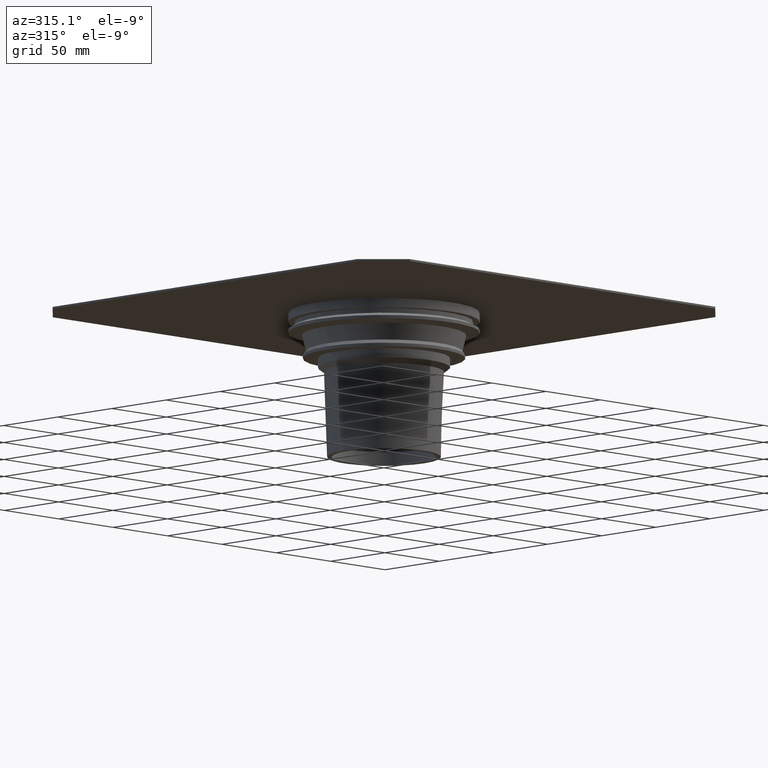
[diagram: clean part render]
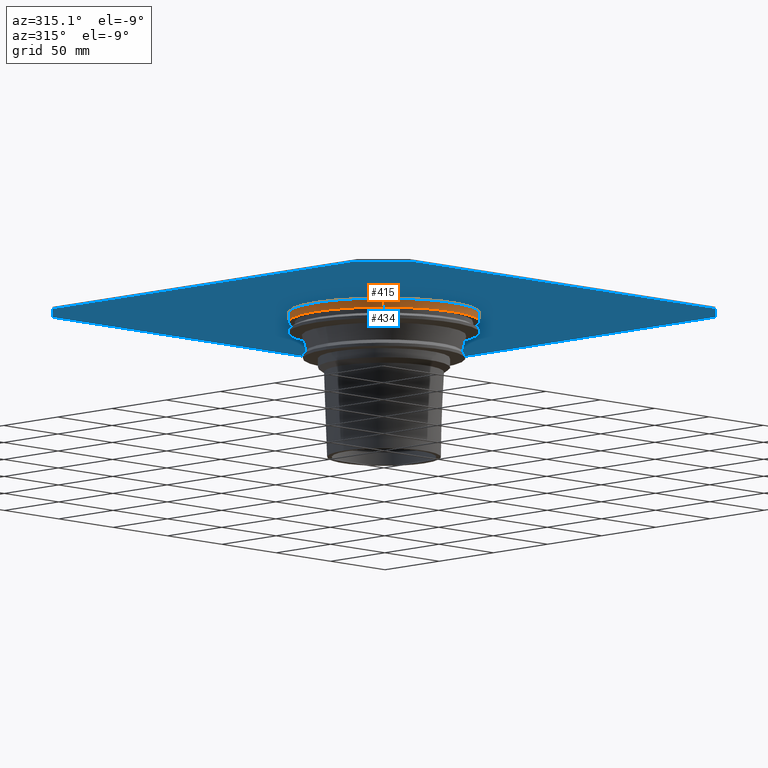
[diagram: same view with the hole feature highlighted: cylindrical wall and planar end face, labeled with their STEP entity ids]
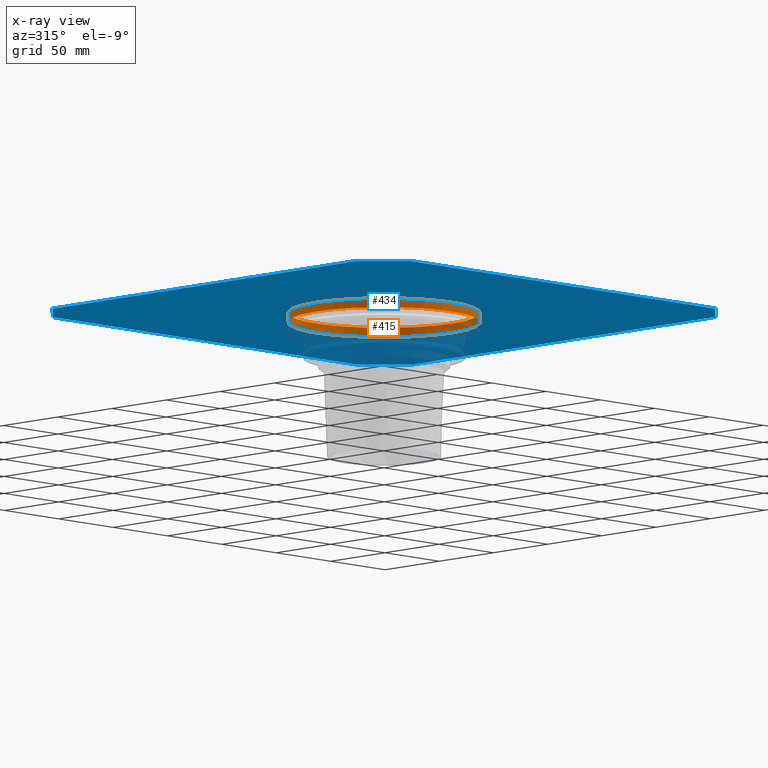
[diagram: x-ray of the same camera — body ghosted, the hole faces saturated]
A machine part, auxiliary view. The highlighted faces form one hole feature of diameter 125 mm: the cylindrical wall (entity #415, orange) and its adjacent planar end face (entity #434, blue) — they share a circular edge in the B-rep.
The next image is the same camera in x-ray (body ghosted, the hole faces saturated) — the bore reads through the body.
Wall:
#128=ORIENTED_EDGE('',*,*,#212,.T.);
#129=ORIENTED_EDGE('',*,*,#210,.F.);
#210=EDGE_CURVE('',#248,#248,#270,.T.);
#212=EDGE_CURVE('',#250,#250,#272,.F.);
#248=VERTEX_POINT('',#690);
#250=VERTEX_POINT('',#695);
#270=CIRCLE('',#461,62.5);
#272=CIRCLE('',#464,62.5);
#302=EDGE_LOOP('',(#128));
#303=EDGE_LOOP('',(#129));
#356=FACE_BOUND('',#302,.T.);
#357=FACE_BOUND('',#303,.T.);
#399=CYLINDRICAL_SURFACE('',#463,62.5);
#415=ADVANCED_FACE('',(#356,#357),#399,.T.);
#461=AXIS2_PLACEMENT_3D('',#689,#552,#553);
#463=AXIS2_PLACEMENT_3D('',#693,#556,#557);
#464=AXIS2_PLACEMENT_3D('',#694,#558,#559);
#552=DIRECTION('',(0.,0.,-1.));
#553=DIRECTION('',(-1.,0.,0.));
#556=DIRECTION('',(0.,0.,-1.));
#557=DIRECTION('',(-1.,0.,0.));
#558=DIRECTION('',(0.,0.,1.));
#559=DIRECTION('',(1.,0.,0.));
#689=CARTESIAN_POINT('',(0.,0.,-6.00000000000001));
#690=CARTESIAN_POINT('',(-62.5,0.,-6.00000000000001));
#693=CARTESIAN_POINT('',(0.,0.,-50.));
#694=CARTESIAN_POINT('',(0.,0.,0.));
#695=CARTESIAN_POINT('',(62.5,0.,0.));
End face:
#31=LINE('',#646,#55);
#34=LINE('',#652,#58);
#37=LINE('',#658,#61);
#40=LINE('',#664,#64);
#43=LINE('',#670,#67);
#46=LINE('',#676,#70);
#49=LINE('',#682,#73);
#52=LINE('',#687,#76);
#55=VECTOR('',#514,1000.);
#58=VECTOR('',#519,1000.);
#61=VECTOR('',#524,1000.);
#64=VECTOR('',#529,1000.);
#67=VECTOR('',#534,1000.);
#70=VECTOR('',#539,1000.);
#73=VECTOR('',#544,1000.);
#76=VECTOR('',#549,1000.);
#90=PLANE('',#500);
#166=ORIENTED_EDGE('',*,*,#212,.F.);
#167=ORIENTED_EDGE('',*,*,#188,.F.);
#168=ORIENTED_EDGE('',*,*,#209,.F.);
#169=ORIENTED_EDGE('',*,*,#206,.F.);
#170=ORIENTED_EDGE('',*,*,#203,.F.);
#171=ORIENTED_EDGE('',*,*,#200,.F.);
#172=ORIENTED_EDGE('',*,*,#197,.F.);
#173=ORIENTED_EDGE('',*,*,#194,.F.);
#174=ORIENTED_EDGE('',*,*,#191,.F.);
#188=EDGE_CURVE('',#234,#235,#31,.T.);
#191=EDGE_CURVE('',#235,#237,#34,.T.);
#194=EDGE_CURVE('',#237,#239,#37,.T.);
#197=EDGE_CURVE('',#239,#241,#40,.T.);
#200=EDGE_CURVE('',#241,#243,#43,.T.);
#203=EDGE_CURVE('',#243,#245,#46,.T.);
#206=EDGE_CURVE('',#245,#247,#49,.T.);
#209=EDGE_CURVE('',#247,#234,#52,.T.);
#212=EDGE_CURVE('',#250,#250,#272,.F.);
#234=VERTEX_POINT('',#645);
#235=VERTEX_POINT('',#647);
#237=VERTEX_POINT('',#653);
#239=VERTEX_POINT('',#659);
#241=VERTEX_POINT('',#665);
#243=VERTEX_POINT('',#671);
#245=VERTEX_POINT('',#677);
#247=VERTEX_POINT('',#683);
#250=VERTEX_POINT('',#695);
#272=CIRCLE('',#464,62.5);
#340=EDGE_LOOP('',(#166));
#341=EDGE_LOOP('',(#167,#168,#169,#170,#171,#172,#173,#174));
#394=FACE_BOUND('',#340,.T.);
#395=FACE_BOUND('',#341,.T.);
#434=ADVANCED_FACE('',(#394,#395),#90,.F.);
#464=AXIS2_PLACEMENT_3D('',#694,#558,#559);
#500=AXIS2_PLACEMENT_3D('',#748,#630,#631);
#514=DIRECTION('',(0.,-1.,0.));
#519=DIRECTION('',(0.707106781186547,-0.707106781186547,0.));
#524=DIRECTION('',(1.,0.,0.));
#529=DIRECTION('',(0.707106781186547,0.707106781186547,0.));
#534=DIRECTION('',(0.,1.,0.));
#539=DIRECTION('',(-0.707106781186547,0.707106781186547,0.));
#544=DIRECTION('',(-1.,0.,0.));
#549=DIRECTION('',(-0.707106781186547,-0.707106781186547,0.));
#558=DIRECTION('',(0.,0.,1.));
#559=DIRECTION('',(1.,0.,0.));
#630=DIRECTION('',(0.,0.,1.));
#631=DIRECTION('',(1.,0.,0.));
#645=CARTESIAN_POINT('',(-165.,140.251262658471,0.));
#646=CARTESIAN_POINT('',(-165.,140.251262658471,0.));
#647=CARTESIAN_POINT('',(-165.,-140.251262658471,0.));
#652=CARTESIAN_POINT('',(-165.,-140.251262658471,0.));
#653=CARTESIAN_POINT('',(-140.251262658471,-165.,0.));
#658=CARTESIAN_POINT('',(-140.251262658471,-165.,0.));
#659=CARTESIAN_POINT('',(140.251262658471,-165.,0.));
#664=CARTESIAN_POINT('',(140.251262658471,-165.,0.));
#665=CARTESIAN_POINT('',(165.,-140.251262658471,0.));
#670=CARTESIAN_POINT('',(165.,-140.251262658471,0.));
#671=CARTESIAN_POINT('',(165.,140.251262658471,0.));
#676=CARTESIAN_POINT('',(165.,140.251262658471,0.));
#677=CARTESIAN_POINT('',(140.251262658471,165.,0.));
#682=CARTESIAN_POINT('',(140.251262658471,165.,0.));
#683=CARTESIAN_POINT('',(-140.251262658471,165.,0.));
#687=CARTESIAN_POINT('',(-140.251262658471,165.,0.));
#694=CARTESIAN_POINT('',(0.,0.,0.));
#695=CARTESIAN_POINT('',(62.5,0.,0.));
#748=CARTESIAN_POINT('',(0.,0.,0.));